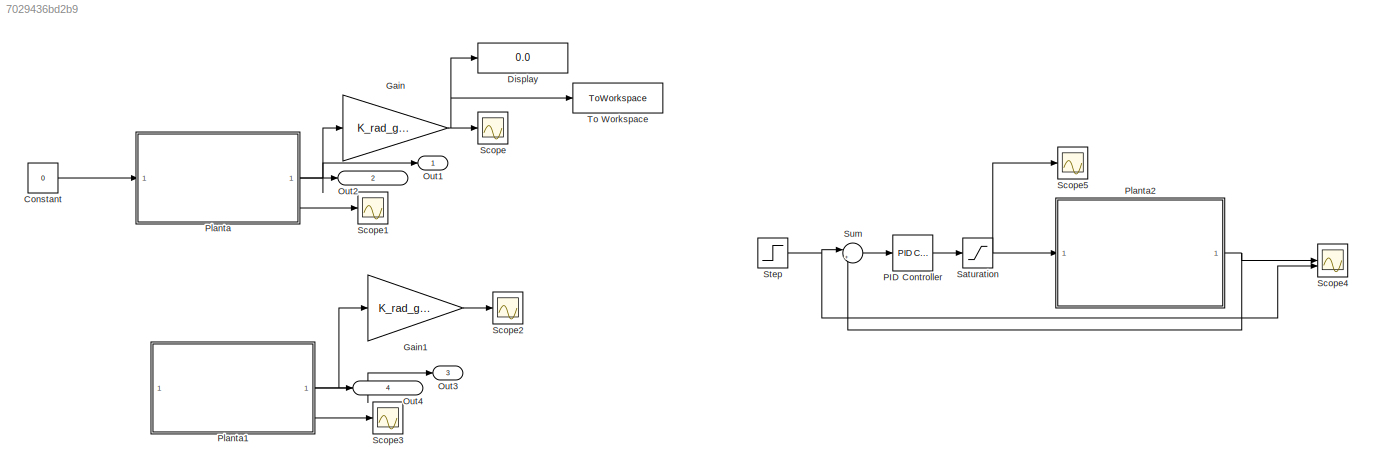
MODEL slx_7029436bd2b9
KIND model
CONFIG AbsTol = auto
CONFIG EnableMultiTasking = off
CONFIG FixedStep = 0.1
CONFIG MaxStep = auto
CONFIG MinStep = auto
CONFIG RelTol = 1e-3
CONFIG SampleTimeConstraint = Unconstrained
CONFIG SolverName = FixedStepAuto
CONFIG StartTime = 0.0
CONFIG StopTime = 1000
BLOCK [Constant] Constant
  Value = 0
BLOCK [Display] Display
  Decimation = 1
BLOCK [Gain] Gain
  Gain = K_rad_grados
BLOCK [Gain] Gain1
  Gain = K_rad_grados
BLOCK [Outport] Out1
  IconDisplay = Signal name
  SignalName = Theta
BLOCK [Outport] Out2
  IconDisplay = Signal name
  Port = 2
  SignalName = Theta_Prima
BLOCK [Outport] Out3
  IconDisplay = Signal name
  Port = 3
  SignalName = Theta
BLOCK [Outport] Out4
  IconDisplay = Signal name
  Port = 4
  SignalName = Theta_Prima
BLOCK [Reference] PID Controller  REF=slpidlib/PID Controller
  Commented = on
  LibrarySourceBlock = simulink/Continuous/PID Controller
  SourceBlock = slpidlib/PID Controller
  SourceType = PID 1dof
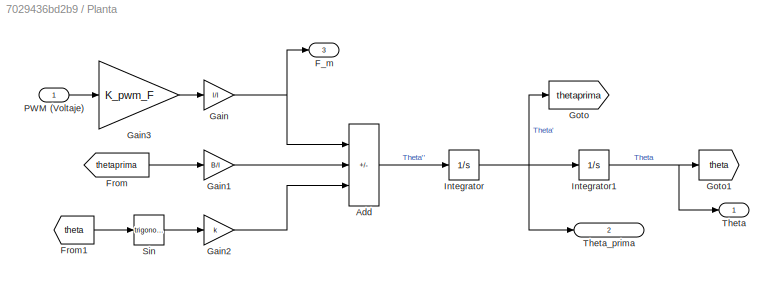
BLOCK [SubSystem] Planta
BLOCK [Sum] Planta/Add
  IconShape = rectangular
  Inputs = +--
BLOCK [Outport] Planta/F_m
  Port = 3
BLOCK [From] Planta/From
  GotoTag = thetaprima
BLOCK [From] Planta/From1
  GotoTag = theta
BLOCK [Gain] Planta/Gain
  Gain = l/I
BLOCK [Gain] Planta/Gain1
  Gain = B/I
BLOCK [Gain] Planta/Gain2
  Gain = k
BLOCK [Gain] Planta/Gain3
  Gain = K_pwm_F
BLOCK [Goto] Planta/Goto
  GotoTag = thetaprima
BLOCK [Goto] Planta/Goto1
  GotoTag = theta
BLOCK [Integrator] Planta/Integrator
BLOCK [Integrator] Planta/Integrator1
  InitialCondition = angulo_inicial
BLOCK [Inport] Planta/PWM (Voltaje)
  IconDisplay = Signal name
BLOCK [Trigonometry] Planta/Sin
BLOCK [Outport] Planta/Theta
BLOCK [Outport] Planta/Theta_prima
  Port = 2
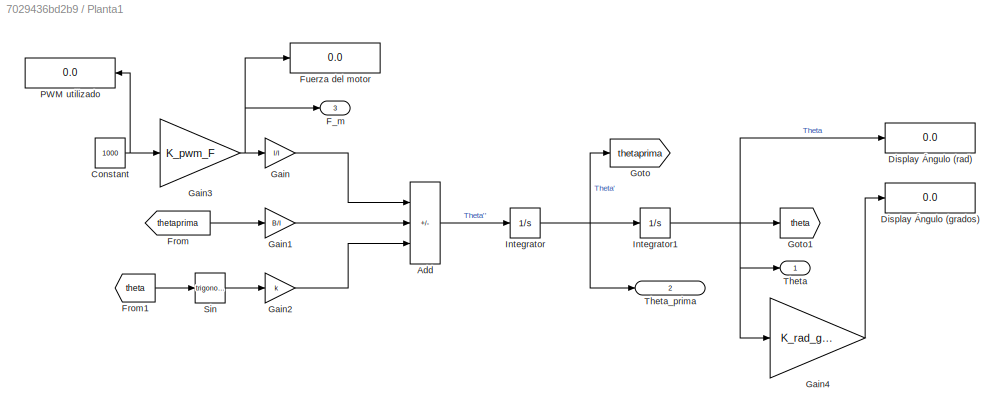
BLOCK [SubSystem] Planta1
BLOCK [Sum] Planta1/Add
  IconShape = rectangular
  Inputs = +--
BLOCK [Constant] Planta1/Constant
  Value = 1000
BLOCK [Display] Planta1/Display Ángulo (grados)
  Decimation = 1
BLOCK [Display] Planta1/Display Ángulo (rad)
  Decimation = 1
BLOCK [Outport] Planta1/F_m
  Port = 3
BLOCK [From] Planta1/From
  GotoTag = thetaprima
BLOCK [From] Planta1/From1
  GotoTag = theta
BLOCK [Display] Planta1/Fuerza del motor
  Decimation = 1
BLOCK [Gain] Planta1/Gain
  Gain = l/I
BLOCK [Gain] Planta1/Gain1
  Gain = B/I
BLOCK [Gain] Planta1/Gain2
  Gain = k
BLOCK [Gain] Planta1/Gain3
  Gain = K_pwm_F
BLOCK [Gain] Planta1/Gain4
  Gain = K_rad_grados
BLOCK [Goto] Planta1/Goto
  GotoTag = thetaprima
BLOCK [Goto] Planta1/Goto1
  GotoTag = theta
BLOCK [Integrator] Planta1/Integrator
BLOCK [Integrator] Planta1/Integrator1
  InitialCondition = angulo_inicial
BLOCK [Display] Planta1/PWM utilizado
  Decimation = 1
  NameLocation = top
BLOCK [Trigonometry] Planta1/Sin
BLOCK [Outport] Planta1/Theta
BLOCK [Outport] Planta1/Theta_prima
  Port = 2
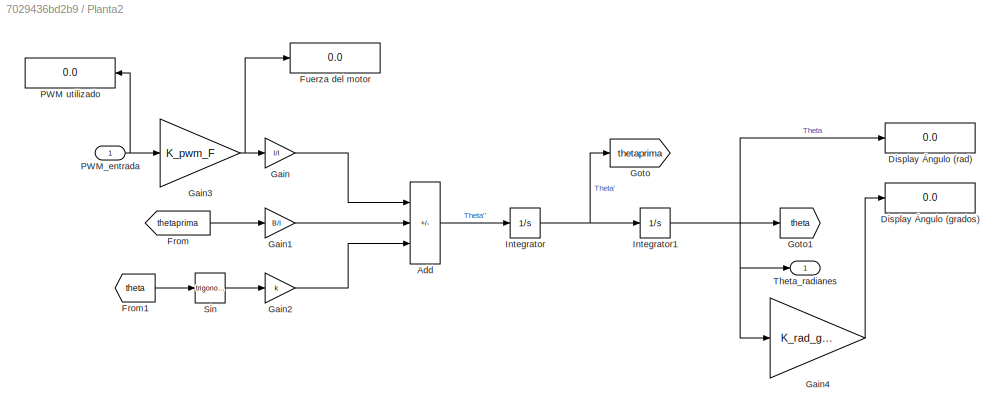
BLOCK [SubSystem] Planta2
  Commented = on
BLOCK [Sum] Planta2/Add
  IconShape = rectangular
  Inputs = +--
BLOCK [Display] Planta2/Display Ángulo (grados)
  Decimation = 1
BLOCK [Display] Planta2/Display Ángulo (rad)
  Decimation = 1
BLOCK [From] Planta2/From
  GotoTag = thetaprima
BLOCK [From] Planta2/From1
  GotoTag = theta
BLOCK [Display] Planta2/Fuerza del motor
  Decimation = 1
BLOCK [Gain] Planta2/Gain
  Gain = l/I
BLOCK [Gain] Planta2/Gain1
  Gain = B/I
BLOCK [Gain] Planta2/Gain2
  Gain = k
BLOCK [Gain] Planta2/Gain3
  Gain = K_pwm_F
BLOCK [Gain] Planta2/Gain4
  Gain = K_rad_grados
BLOCK [Goto] Planta2/Goto
  GotoTag = thetaprima
BLOCK [Goto] Planta2/Goto1
  GotoTag = theta
BLOCK [Integrator] Planta2/Integrator
BLOCK [Integrator] Planta2/Integrator1
BLOCK [Display] Planta2/PWM utilizado
  Decimation = 1
  NameLocation = top
BLOCK [Inport] Planta2/PWM_entrada
BLOCK [Trigonometry] Planta2/Sin
BLOCK [Outport] Planta2/Theta_radianes
BLOCK [Saturate] Saturation
  Commented = on
  LowerLimit = 0
  UpperLimit = 1025
BLOCK [Scope] Scope
  ActiveDisplayYMaximum = 112.28840525112393
  ActiveDisplayYMinimum = -111.05190890472292
  Floating = off
  GraphicalSettings = {"Style":{"BackgroundColor":[0.12941176470588237,0.12941176470588237,0.12941176470588237],"AxesColor":[0.07058823529411765,0.07058823529411765,0.07058823529411765],"LabelsColor":[0.8509803921568627,0.8509803921568627,0.8509803921568627],"PreserveColors":false,"Visible":[true],"LineStyle":["-"],"LineWidth":[1.5],"BarWidth":[0.9],"LineColor":["auto"],"LineFaceAlpha":[1],"LineEdgeAlpha":[1],"Marker":...<+1991ch>
  MultipleDisplayCache = [{"MaxYLimMag":112.28840525112393,"MaxYLimReal":112.28840525112393,"MinYLimMag":0,"MinYLimReal":-111.05190890472292,"PlotAsMagnitudePhase":false,"ShowGrid":true,"ShowLegend":false,"Title":"%<SignalLabel>","YLabel":""}]
  NumInputPorts = 1
  ScopeFrameLocation = window
  WasSavedAsWebScope = on
  WindowPosition = [1921.000000,49.000000,1920.000000,1009.000000,]
BLOCK [Scope] Scope1
  ActiveDisplayYMaximum = 3206.7705196034476
  ActiveDisplayYMinimum = 344.31393846196534
  DataLoggingVariableName = ScopeData1
  Floating = off
  GraphicalSettings = {"Style":{"BackgroundColor":[0.12941176470588237,0.12941176470588237,0.12941176470588237],"AxesColor":[0.07058823529411765,0.07058823529411765,0.07058823529411765],"LabelsColor":[0.8509803921568627,0.8509803921568627,0.8509803921568627],"PreserveColors":false,"Visible":[true],"LineStyle":["-"],"LineWidth":[1.5],"BarWidth":[0.9],"LineColor":["auto"],"LineFaceAlpha":[1],"LineEdgeAlpha":[1],"Marker":...<+2023ch>
  MultipleDisplayCache = [{"MaxYLimMag":2871.4691788337004,"MaxYLimReal":3206.7705196034476,"MinYLimMag":871.4691788337002,"MinYLimReal":344.31393846196534,"PlotAsMagnitudePhase":false,"ShowGrid":true,"ShowLegend":false,"Title":"%<SignalLabel>","YLabel":""}]
  NumInputPorts = 1
  ScopeFrameLocation = window
  WasSavedAsWebScope = on
  WindowPosition = [8.000000,44.000000,1264.000000,633.000000,]
BLOCK [Scope] Scope2
  ActiveDisplayYMaximum = 23088.5308812361
  ActiveDisplayYMinimum = -17968.210324978358
  DataLoggingVariableName = ScopeData2
  Floating = off
  GraphicalSettings = {"AxesScalingProperties":{"AlignXAxis":"Center","AlignYAxis":"Center","AutoScaleXAxisLimits":false,"AxesScaling":"Manual","AxesScalingNumUpdates":10,"ExpandOnly":true,"ScaleAxesLimitsAtStop":false,"XAxisDataRange":100,"YAxisDataRange":80},"DisplayProperties":{"ColorOrder":["auto","auto","auto","auto","auto","auto","auto","auto","auto","auto","auto","auto","auto","auto","auto","auto","auto","auto",...<+1995ch>
  MultipleDisplayCache = [{"MaxYLimMag":112.28840525112393,"MaxYLimReal":23088.5308812361,"MinYLimMag":0,"MinYLimReal":-17968.210324978358,"PlotAsMagnitudePhase":false,"ShowGrid":true,"ShowLegend":false,"Title":"%<SignalLabel>","YLabel":""}]
  NumInputPorts = 1
  ScopeFrameLocation = window
  WasSavedAsWebScope = on
  WindowPosition = [0.000000,36.000000,1280.000000,649.000000,]
BLOCK [Scope] Scope3
  ActiveDisplayYMaximum = 3206.7705196034476
  ActiveDisplayYMinimum = 344.31393846196534
  DataLoggingVariableName = ScopeData3
  Floating = off
  GraphicalSettings = {"Style":{"BackgroundColor":[0.12941176470588237,0.12941176470588237,0.12941176470588237],"AxesColor":[0.07058823529411765,0.07058823529411765,0.07058823529411765],"LabelsColor":[0.8509803921568627,0.8509803921568627,0.8509803921568627],"PreserveColors":false,"Visible":[true],"LineStyle":["-"],"LineWidth":[1.5],"BarWidth":[0.9],"LineColor":["auto"],"LineFaceAlpha":[1],"LineEdgeAlpha":[1],"Marker":...<+2023ch>
  MultipleDisplayCache = [{"MaxYLimMag":2871.4691788337004,"MaxYLimReal":3206.7705196034476,"MinYLimMag":871.4691788337002,"MinYLimReal":344.31393846196534,"PlotAsMagnitudePhase":false,"ShowGrid":true,"ShowLegend":false,"Title":"%<SignalLabel>","YLabel":""}]
  NumInputPorts = 1
  ScopeFrameLocation = window
  WasSavedAsWebScope = on
  WindowPosition = [1921.000000,49.000000,1920.000000,1009.000000,]
BLOCK [Scope] Scope4
  ActiveDisplayYMaximum = 1.125
  ActiveDisplayYMinimum = -0.12499999999999997
  Commented = on
  DataLoggingVariableName = ScopeData4
  Floating = off
  GraphicalSettings = {"Style":{"BackgroundColor":[0.12941176470588237,0.12941176470588237,0.12941176470588237],"AxesColor":[0.07058823529411765,0.07058823529411765,0.07058823529411765],"LabelsColor":[0.8509803921568627,0.8509803921568627,0.8509803921568627],"PreserveColors":false,"Visible":[true,true],"LineStyle":["-","-"],"LineWidth":[1.5,1.5],"BarWidth":[0.9,0.9],"LineColor":["auto","auto"],"LineFaceAlpha":[1,1],"Li...<+1994ch>
  MultipleDisplayCache = [{"MaxYLimMag":1.125,"MaxYLimReal":1.125,"MinYLimMag":0,"MinYLimReal":-0.12499999999999997,"PlotAsMagnitudePhase":false,"ShowGrid":true,"ShowLegend":false,"Title":"%<SignalLabel>","YLabel":""}]
  NumInputPorts = 2
  ScopeFrameLocation = window
  WasSavedAsWebScope = on
  WindowPosition = [1.000000,49.000000,1280.000000,649.000000,]
BLOCK [Scope] Scope5
  ActiveDisplayYMaximum = 1278.8055452241183
  ActiveDisplayYMinimum = -165.09356618749939
  Commented = on
  DataLoggingVariableName = ScopeData5
  Floating = off
  GraphicalSettings = {"Style":{"BackgroundColor":[0.12941176470588237,0.12941176470588237,0.12941176470588237],"AxesColor":[0.07058823529411765,0.07058823529411765,0.07058823529411765],"LabelsColor":[0.8509803921568627,0.8509803921568627,0.8509803921568627],"PreserveColors":false,"Visible":[true],"LineStyle":["-"],"LineWidth":[1.5],"BarWidth":[0.9],"LineColor":["auto"],"LineFaceAlpha":[1],"LineEdgeAlpha":[1],"Marker":...<+1973ch>
  MultipleDisplayCache = [{"MaxYLimMag":1153.125,"MaxYLimReal":1278.8055452241183,"MinYLimMag":0,"MinYLimReal":-165.09356618749939,"PlotAsMagnitudePhase":false,"ShowGrid":true,"ShowLegend":false,"Title":"%<SignalLabel>","YLabel":""}]
  NumInputPorts = 1
  ScopeFrameLocation = window
  WasSavedAsWebScope = on
  WindowPosition = [1.000000,49.000000,1280.000000,649.000000,]
BLOCK [Step] Step
  Commented = on
  SampleTime = 0
BLOCK [Sum] Sum
  Commented = on
  Inputs = |+-
BLOCK [ToWorkspace] To Workspace
  FixptAsFi = on
  MaxDataPoints = inf
  SampleTime = -1
  SaveFormat = Timeseries
  VariableName = simout
LINE Constant:1 -> Planta:1
LINE Gain1:1 -> Scope2:1
NET Gain:1 -> Display:1, Scope:1, To Workspace:1
LINE PID Controller:1 -> Saturation:1
LINE Planta/Add:1 -> Planta/Integrator:1
LINE Planta/From1:1 -> Planta/Sin:1
LINE Planta/From:1 -> Planta/Gain1:1
LINE Planta/Gain1:1 -> Planta/Add:2
LINE Planta/Gain2:1 -> Planta/Add:3
LINE Planta/Gain3:1 -> Planta/Gain:1
NET Planta/Gain:1 -> Planta/Add:1, Planta/F_m:1
NET Planta/Integrator1:1 -> Planta/Goto1:1, Planta/Theta:1
NET Planta/Integrator:1 -> Planta/Goto:1, Planta/Integrator1:1, Planta/Theta_prima:1
LINE Planta/PWM (Voltaje):1 -> Planta/Gain3:1
LINE Planta/Sin:1 -> Planta/Gain2:1
LINE Planta1/Add:1 -> Planta1/Integrator:1
NET Planta1/Constant:1 -> Planta1/Gain3:1, Planta1/PWM utilizado:1
LINE Planta1/From1:1 -> Planta1/Sin:1
LINE Planta1/From:1 -> Planta1/Gain1:1
LINE Planta1/Gain1:1 -> Planta1/Add:2
LINE Planta1/Gain2:1 -> Planta1/Add:3
NET Planta1/Gain3:1 -> Planta1/F_m:1, Planta1/Fuerza del motor:1, Planta1/Gain:1
LINE Planta1/Gain4:1 -> Planta1/Display Ángulo (grados):1
LINE Planta1/Gain:1 -> Planta1/Add:1
NET Planta1/Integrator1:1 -> Planta1/Display Ángulo (rad):1, Planta1/Gain4:1, Planta1/Goto1:1, Planta1/Theta:1
NET Planta1/Integrator:1 -> Planta1/Goto:1, Planta1/Integrator1:1, Planta1/Theta_prima:1
LINE Planta1/Sin:1 -> Planta1/Gain2:1
NET Planta1:1 -> Gain1:1, Out3:1
LINE Planta1:2 -> Out4:1
LINE Planta1:3 -> Scope3:1
LINE Planta2/Add:1 -> Planta2/Integrator:1
LINE Planta2/From1:1 -> Planta2/Sin:1
LINE Planta2/From:1 -> Planta2/Gain1:1
LINE Planta2/Gain1:1 -> Planta2/Add:2
LINE Planta2/Gain2:1 -> Planta2/Add:3
NET Planta2/Gain3:1 -> Planta2/Fuerza del motor:1, Planta2/Gain:1
LINE Planta2/Gain4:1 -> Planta2/Display Ángulo (grados):1
LINE Planta2/Gain:1 -> Planta2/Add:1
NET Planta2/Integrator1:1 -> Planta2/Display Ángulo (rad):1, Planta2/Gain4:1, Planta2/Goto1:1, Planta2/Theta_radianes:1
NET Planta2/Integrator:1 -> Planta2/Goto:1, Planta2/Integrator1:1
NET Planta2/PWM_entrada:1 -> Planta2/Gain3:1, Planta2/PWM utilizado:1
LINE Planta2/Sin:1 -> Planta2/Gain2:1
NET Planta2:1 -> Scope4:1, Sum:2
NET Planta:1 -> Gain:1, Out1:1
LINE Planta:2 -> Out2:1
LINE Planta:3 -> Scope1:1
NET Saturation:1 -> Planta2:1, Scope5:1
NET Step:1 -> Scope4:2, Sum:1
LINE Sum:1 -> PID Controller:1
note: NET lines group one-source signal fan-out (src -> all destinations, sorted); 1:1 wires keep LINE
